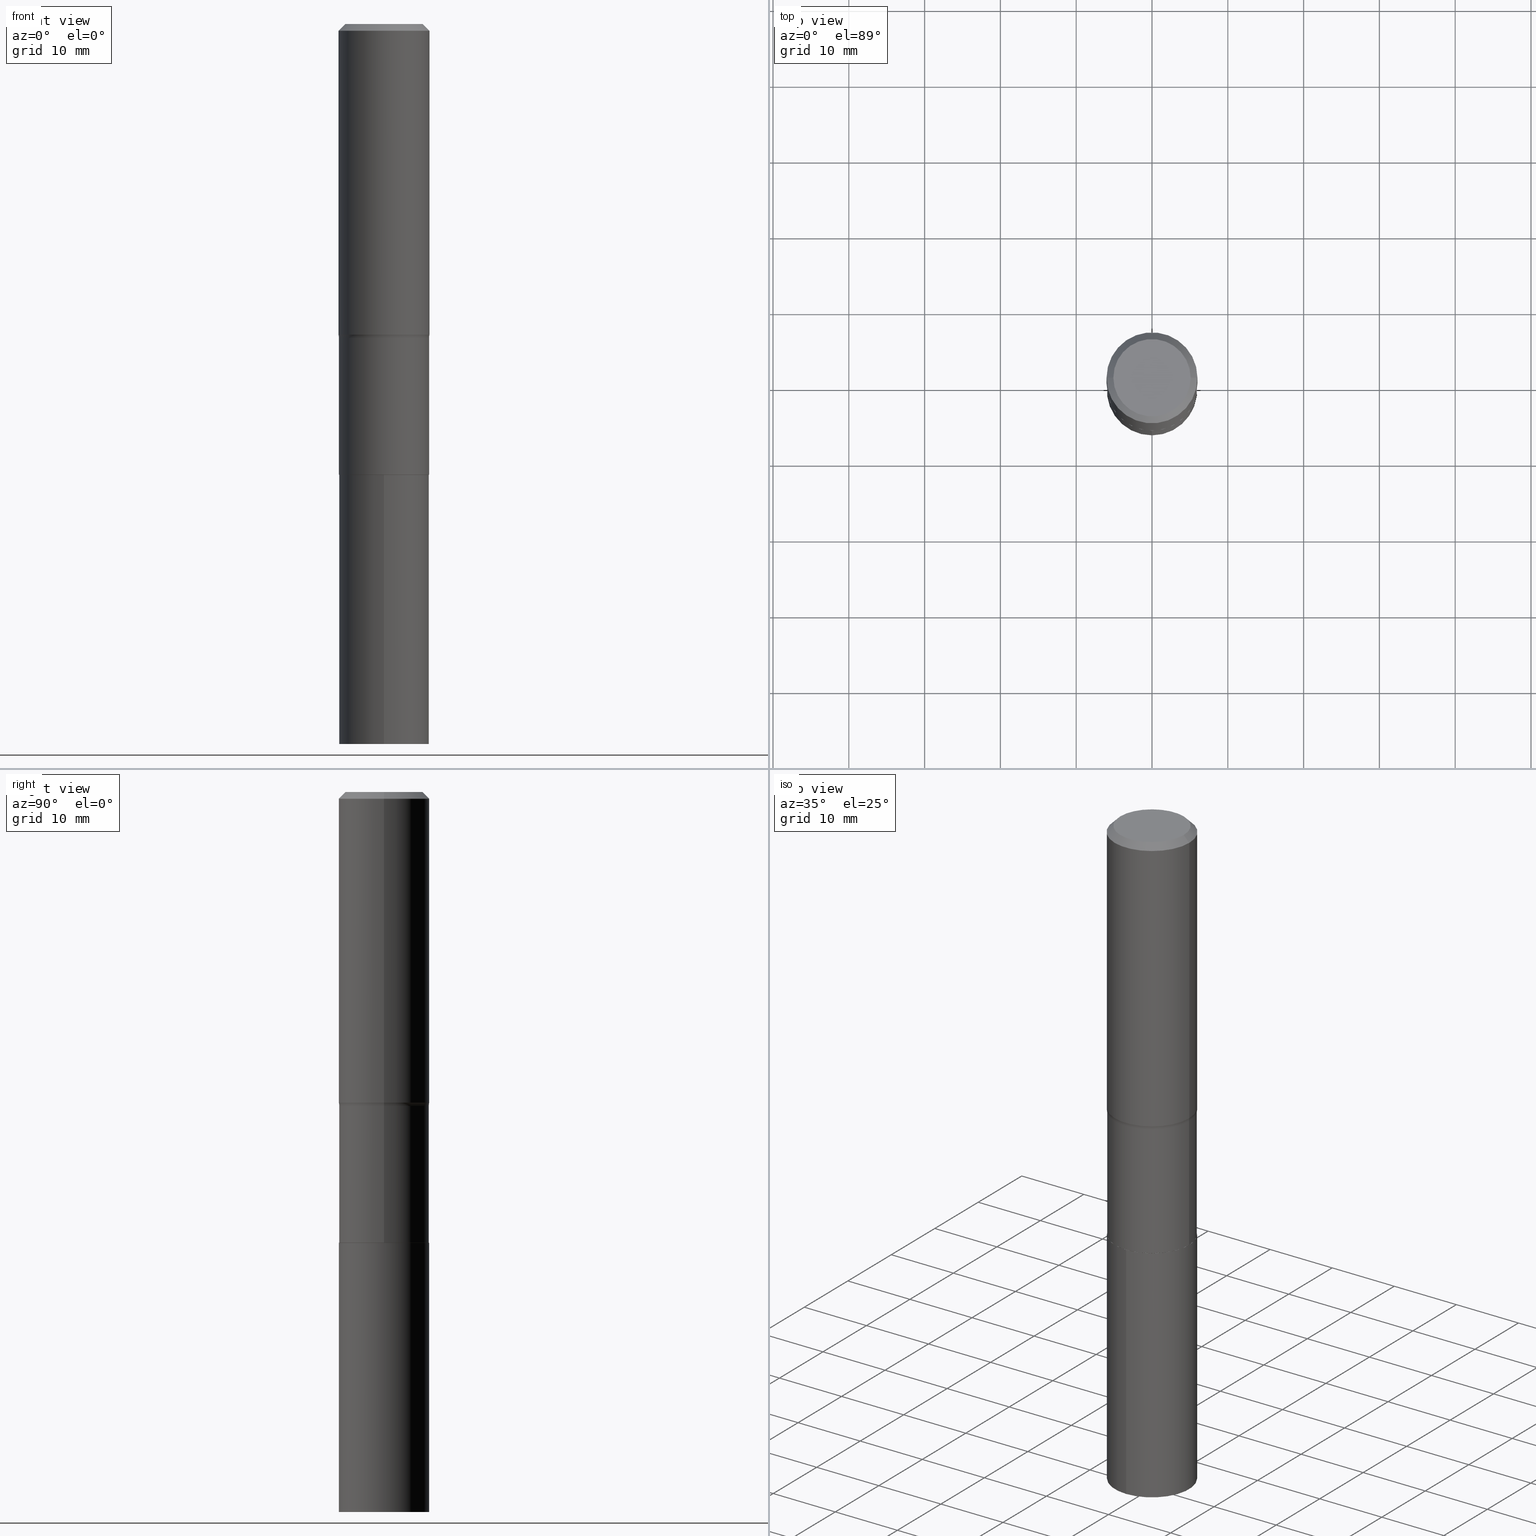
[diagram: canonical four-view strip — front | top / right | iso, engineering-drawing reading convention]
A machine part, canonical four-view strip (front | top / right | iso — engineering-drawing reading convention). The complete STEP part file that produces these views, byte-faithful:
ISO-10303-21;
HEADER;
FILE_DESCRIPTION (( 'STEP AP203' ),
    '1' );
FILE_NAME ('67796.STEP',
    '2024-04-19T16:32:29',
    ( '' ),
    ( '' ),
    'SwSTEP 2.0',
    'SolidWorks 2023',
    '' );
FILE_SCHEMA (( 'CONFIG_CONTROL_DESIGN' ));
ENDSEC;

DATA;
#1 = DIRECTION ( 'NONE',  ( 1.000000000000000000, -6.982962677686263555E-15, 0.000000000000000000 ) ) ;
#2 = EDGE_CURVE ( 'NONE', #415, #142, #339, .T. ) ;
#3 = AXIS2_PLACEMENT_3D ( 'NONE', #371, #294, #79 ) ;
#4 = TOROIDAL_SURFACE ( 'NONE', #446, 0.3142499999999999183, 0.08000000000000000167 ) ;
#5 = DIRECTION ( 'NONE',  ( 1.000000000000000000, -6.982962677686266711E-15, 4.876176775795935793E-29 ) ) ;
#6 = APPLICATION_PROTOCOL_DEFINITION ( 'international standard', 'config_control_design', 1994, #11 ) ;
#7 = ORIENTED_EDGE ( 'NONE', *, *, #2, .T. ) ;
#8 = CIRCLE ( 'NONE', #310, 0.2337500000000000133 ) ;
#9 = AXIS2_PLACEMENT_3D ( 'NONE', #321, #107, #1 ) ;
#10 = VERTEX_POINT ( 'NONE', #191 ) ;
#11 = APPLICATION_CONTEXT ( 'configuration controlled 3d designs of mechanical parts and assemblies' ) ;
#12 = CARTESIAN_POINT ( 'NONE',  ( 0.000000000000000000, 0.000000000000000000, 0.000000000000000000 ) ) ;
#13 = LINE ( 'NONE', #305, #391 ) ;
#14 = EDGE_CURVE ( 'NONE', #315, #244, #8, .T. ) ;
#15 = APPROVAL_DATE_TIME ( #293, #438 ) ;
#16 = ORIENTED_EDGE ( 'NONE', *, *, #272, .F. ) ;
#17 = CARTESIAN_POINT ( 'NONE',  ( -0.2337500000000000133, -6.513362465660339042E-15, -2.341200000000000170 ) ) ;
#18 = AXIS2_PLACEMENT_3D ( 'NONE', #238, #61, #379 ) ;
#19 = ADVANCED_FACE ( 'NONE', ( #297 ), #369, .T. ) ;
#20 = CARTESIAN_POINT ( 'NONE',  ( 0.2362000000000001043, -1.649375784469496920E-15, 1.151752954443000508E-29 ) ) ;
#21 = CC_DESIGN_PERSON_AND_ORGANIZATION_ASSIGNMENT ( #262, #407, ( #189 ) ) ;
#22 = DIRECTION ( 'NONE',  ( -2.445468806185136597E-29, 3.491481338843145583E-15, 1.000000000000000000 ) ) ;
#23 = CARTESIAN_POINT ( 'NONE',  ( 0.2361999999999999933, -1.773078968304709711E-15, -0.03543000000000023908 ) ) ;
#24 = AXIS2_PLACEMENT_3D ( 'NONE', #12, #337, #372 ) ;
#25 = CARTESIAN_POINT ( 'NONE',  ( 5.725331569040642181E-29, -8.174256110499573321E-15, -2.341200000000000170 ) ) ;
#26 = EDGE_CURVE ( 'NONE', #426, #35, #66, .T. ) ;
#27 = EDGE_LOOP ( 'NONE', ( #133, #187 ) ) ;
#28 = DIRECTION ( 'NONE',  ( 0.7071067811866199593, -2.468850131083015945E-15, 0.7071067811864750752 ) ) ;
#29 = ADVANCED_BREP_SHAPE_REPRESENTATION ( '67796', ( #277, #123, #24 ), #322 ) ;
#30 = ORIENTED_EDGE ( 'NONE', *, *, #139, .T. ) ;
#31 = DIRECTION ( 'NONE',  ( -2.445468806185136597E-29, 3.491481338843145583E-15, 1.000000000000000000 ) ) ;
#32 = ORIENTED_EDGE ( 'NONE', *, *, #44, .T. ) ;
#33 = CIRCLE ( 'NONE', #9, 0.2342499999999999027 ) ;
#34 = DIRECTION ( 'NONE',  ( -2.445468806185136597E-29, 3.491481338843145583E-15, 1.000000000000000000 ) ) ;
#35 = VERTEX_POINT ( 'NONE', #115 ) ;
#36 = CARTESIAN_POINT ( 'NONE',  ( -0.2362000000000001043, 1.678301941865357380E-15, -1.161852468318209317E-29 ) ) ;
#37 = CARTESIAN_POINT ( 'NONE',  ( 1.664446358518108739E-15, 0.2342499999999869686, -3.740200000000001967 ) ) ;
#38 = CLOSED_SHELL ( 'NONE', ( #358, #198, #145, #245 ) ) ;
#39 = CARTESIAN_POINT ( 'NONE',  ( 3.988315076007339561E-29, -5.694256915519285955E-15, -1.630900000000000016 ) ) ;
#40 = FACE_OUTER_BOUND ( 'NONE', #169, .T. ) ;
#41 = ORIENTED_EDGE ( 'NONE', *, *, #272, .T. ) ;
#42 = EDGE_LOOP ( 'NONE', ( #108, #32, #405, #428 ) ) ;
#43 = CIRCLE ( 'NONE', #311, 0.2342500000000000138 ) ;
#44 = EDGE_CURVE ( 'NONE', #315, #439, #335, .T. ) ;
#45 = CARTESIAN_POINT ( 'NONE',  ( 5.724108834637550500E-29, -8.172510369830151029E-15, -2.340700000000000447 ) ) ;
#46 = COORDINATED_UNIVERSAL_TIME_OFFSET ( 5, 0, .BEHIND. ) ;
#47 = LINE ( 'NONE', #197, #118 ) ;
#48 = COORDINATED_UNIVERSAL_TIME_OFFSET ( 5, 0, .BEHIND. ) ;
#49 = DIRECTION ( 'NONE',  ( -0.7071067811865451302, 2.468850131082231817E-15, -0.7071067811865499042 ) ) ;
#50 = ORIENTED_EDGE ( 'NONE', *, *, #333, .F. ) ;
#51 = AXIS2_PLACEMENT_3D ( 'NONE', #336, #443, #83 ) ;
#52 = DIRECTION ( 'NONE',  ( -2.445468806185136597E-29, 3.491481338843145583E-15, 1.000000000000000000 ) ) ;
#53 = APPROVAL_PERSON_ORGANIZATION ( #448, #438, #225 ) ;
#54 = CC_DESIGN_PERSON_AND_ORGANIZATION_ASSIGNMENT ( #365, #121, ( #298 ) ) ;
#55 = CARTESIAN_POINT ( 'NONE',  ( 0.2337500000000000133, -9.806523636408736745E-15, -2.341200000000000170 ) ) ;
#56 = CARTESIAN_POINT ( 'NONE',  ( 0.2337500000000000133, -9.806523636408736745E-15, -2.341200000000000170 ) ) ;
#57 = CARTESIAN_POINT ( 'NONE',  ( 3.988315076007339561E-29, -5.694256915519285955E-15, -1.630900000000000016 ) ) ;
#58 = EDGE_CURVE ( 'NONE', #415, #221, #334, .T. ) ;
#59 = AXIS2_PLACEMENT_3D ( 'NONE', #354, #146, #105 ) ;
#60 = ORIENTED_EDGE ( 'NONE', *, *, #87, .T. ) ;
#61 = DIRECTION ( 'NONE',  ( -2.445468806185136597E-29, 3.491481338843145583E-15, 1.000000000000000000 ) ) ;
#62 = ORIENTED_EDGE ( 'NONE', *, *, #344, .F. ) ;
#63 = CARTESIAN_POINT ( 'NONE',  ( -0.2342499999999999027, -5.268937284156683709E-15, -1.630900000000000016 ) ) ;
#64 = ORIENTED_EDGE ( 'NONE', *, *, #2, .F. ) ;
#65 = DIRECTION ( 'NONE',  ( -2.445468806185136597E-29, 3.491481338843145583E-15, 1.000000000000000000 ) ) ;
#66 = CIRCLE ( 'NONE', #404, 0.2007700000000000040 ) ;
#67 = ORIENTED_EDGE ( 'NONE', *, *, #451, .F. ) ;
#68 = CC_DESIGN_PERSON_AND_ORGANIZATION_ASSIGNMENT ( #300, #444, ( #189 ) ) ;
#69 = CARTESIAN_POINT ( 'NONE',  ( 0.2362000000000002153, -7.282337808442698959E-15, -1.613344445323487086 ) ) ;
#70 = UNCERTAINTY_MEASURE_WITH_UNIT (LENGTH_MEASURE( 1.000000000000000082E-05 ), #442, 'distance_accuracy_value', 'NONE');
#71 = CARTESIAN_POINT ( 'NONE',  ( -0.2342500000000000415, -5.268937284156683709E-15, -2.340700000000000447 ) ) ;
#72 = FACE_OUTER_BOUND ( 'NONE', #85, .T. ) ;
#73 = CLOSED_SHELL ( 'NONE', ( #222, #167, #307, #363, #400, #19, #185, #316, #380, #295, #214, #113 ) ) ;
#74 = DIRECTION ( 'NONE',  ( 2.438088387897960049E-29, -3.491481338843145188E-15, -1.000000000000000000 ) ) ;
#75 = ORIENTED_EDGE ( 'NONE', *, *, #77, .T. ) ;
#76 = CARTESIAN_POINT ( 'NONE',  ( 5.725331569040642181E-29, -8.174256110499573321E-15, -2.341200000000000170 ) ) ;
#77 = EDGE_CURVE ( 'NONE', #142, #210, #143, .T. ) ;
#78 = DIRECTION ( 'NONE',  ( -2.445460202630116151E-29, 3.491493659623618678E-15, 1.000000000000000000 ) ) ;
#79 = DIRECTION ( 'NONE',  ( -1.000000000000000000, 7.105427357601001859E-15, 0.000000000000000000 ) ) ;
#80 = EDGE_CURVE ( 'NONE', #35, #230, #195, .T. ) ;
#81 = AXIS2_PLACEMENT_3D ( 'NONE', #141, #65, #5 ) ;
#82 =( NAMED_UNIT ( * ) SI_UNIT ( $, .STERADIAN. ) SOLID_ANGLE_UNIT ( ) );
#83 = DIRECTION ( 'NONE',  ( 1.000000000000000000, -6.982962677686266711E-15, 0.000000000000000000 ) ) ;
#84 = SECURITY_CLASSIFICATION_LEVEL ( 'unclassified' ) ;
#85 = EDGE_LOOP ( 'NONE', ( #125, #278, #16, #460 ) ) ;
#86 = ORIENTED_EDGE ( 'NONE', *, *, #87, .F. ) ;
#87 = EDGE_CURVE ( 'NONE', #283, #10, #47, .T. ) ;
#88 = DIRECTION ( 'NONE',  ( 1.000000000000000000, -6.982962677686265922E-15, 4.876176775795935793E-29 ) ) ;
#89 = PLANE ( 'NONE',  #237 ) ;
#90 = EDGE_CURVE ( 'NONE', #281, #439, #203, .T. ) ;
#91 = DIRECTION ( 'NONE',  ( 2.445468806185136597E-29, -3.491481338843145583E-15, -1.000000000000000000 ) ) ;
#92 = APPROVAL ( #154, 'UNSPECIFIED' ) ;
#93 = CARTESIAN_POINT ( 'NONE',  ( 9.146530392520179106E-29, -1.305885574031301935E-14, -3.740200000000001079 ) ) ;
#94 = CIRCLE ( 'NONE', #423, 0.2342500000000000138 ) ;
#95 = ORGANIZATION ( 'UNSPECIFIED', 'UNSPECIFIED', '' ) ;
#96 = ORIENTED_EDGE ( 'NONE', *, *, #183, .F. ) ;
#97 = CARTESIAN_POINT ( 'NONE',  ( 3.988315076007339561E-29, -5.694256915519285955E-15, -1.630900000000000016 ) ) ;
#98 = ORIENTED_EDGE ( 'NONE', *, *, #77, .F. ) ;
#99 = DIRECTION ( 'NONE',  ( 1.000000000000000000, -6.982962677686266711E-15, 4.876176775795935793E-29 ) ) ;
#100 = CC_DESIGN_PERSON_AND_ORGANIZATION_ASSIGNMENT ( #228, #304, ( #299 ) ) ;
#101 = ORIENTED_EDGE ( 'NONE', *, *, #163, .F. ) ;
#102 = CYLINDRICAL_SURFACE ( 'NONE', #463, 0.2342500000000000138 ) ;
#103 = AXIS2_PLACEMENT_3D ( 'NONE', #385, #124, #273 ) ;
#104 = APPLICATION_CONTEXT ( 'configuration controlled 3d designs of mechanical parts and assemblies' ) ;
#105 = DIRECTION ( 'NONE',  ( 1.000000000000000000, -6.982962677686266711E-15, 0.000000000000000000 ) ) ;
#106 = CARTESIAN_POINT ( 'NONE',  ( -1.001697619218023151E-46, 1.430158722866391908E-32, 4.096137381448114529E-18 ) ) ;
#107 = DIRECTION ( 'NONE',  ( -2.445468806185136597E-29, 3.491481338843145583E-15, 1.000000000000000000 ) ) ;
#108 = ORIENTED_EDGE ( 'NONE', *, *, #288, .T. ) ;
#109 = VECTOR ( 'NONE', #356, 39.37007874015748143 ) ;
#110 = SECURITY_CLASSIFICATION ( '', '', #84 ) ;
#111 = CALENDAR_DATE ( 2024, 19, 4 ) ;
#112 = CARTESIAN_POINT ( 'NONE',  ( 9.146530392520179106E-29, -1.305885574031301935E-14, -3.740200000000001079 ) ) ;
#113 = ADVANCED_FACE ( 'NONE', ( #226 ), #456, .T. ) ;
#114 = DIRECTION ( 'NONE',  ( -6.982962677686265133E-15, -1.000000000000000000, 3.498631368620187579E-15 ) ) ;
#115 = CARTESIAN_POINT ( 'NONE',  ( -0.2007700000000000040, 1.463821008716676943E-15, 4.096137381438094301E-18 ) ) ;
#116 = CC_DESIGN_DATE_AND_TIME_ASSIGNMENT ( #186, #264, ( #298 ) ) ;
#117 = DIRECTION ( 'NONE',  ( -0.7071067811866199593, 7.493145998870616062E-15, 0.7071067811864750752 ) ) ;
#118 = VECTOR ( 'NONE', #193, 39.37007874015748143 ) ;
#119 = AXIS2_PLACEMENT_3D ( 'NONE', #76, #270, #199 ) ;
#120 = DIRECTION ( 'NONE',  ( 1.000000000000000000, -6.982962677686262766E-15, 0.000000000000000000 ) ) ;
#121 = PERSON_AND_ORGANIZATION_ROLE ( 'creator' ) ;
#122 = FACE_OUTER_BOUND ( 'NONE', #160, .T. ) ;
#123 = MANIFOLD_SOLID_BREP ( 'Body-Move/Copy2[2]', #73 ) ;
#124 = DIRECTION ( 'NONE',  ( -6.982962677686266711E-15, -1.000000000000000000, 3.491481338843145583E-15 ) ) ;
#125 = ORIENTED_EDGE ( 'NONE', *, *, #90, .T. ) ;
#126 = CALENDAR_DATE ( 2024, 19, 4 ) ;
#127 = CIRCLE ( 'NONE', #247, 0.2342500000000000138 ) ;
#128 = CARTESIAN_POINT ( 'NONE',  ( 1.664446358518126094E-15, 0.2342499999999918259, -2.341200000000001058 ) ) ;
#129 = LOCAL_TIME ( 12, 32, 29.00000000000000000, #46 ) ;
#130 = EDGE_CURVE ( 'NONE', #439, #210, #13, .T. ) ;
#131 = CARTESIAN_POINT ( 'NONE',  ( 0.2342500000000000138, -9.808269377078159037E-15, -2.340700000000000447 ) ) ;
#132 = PRODUCT_RELATED_PRODUCT_CATEGORY ( 'detail', '', ( #299 ) ) ;
#133 = ORIENTED_EDGE ( 'NONE', *, *, #344, .T. ) ;
#134 = DIRECTION ( 'NONE',  ( 1.000000000000000000, -6.982962677686263555E-15, 0.000000000000000000 ) ) ;
#135 = AXIS2_PLACEMENT_3D ( 'NONE', #39, #467, #433 ) ;
#136 = ORIENTED_EDGE ( 'NONE', *, *, #280, .T. ) ;
#137 = DESIGN_CONTEXT ( 'detailed design', #104, 'design' ) ;
#138 = CARTESIAN_POINT ( 'NONE',  ( 0.000000000000000000, 0.000000000000000000, 0.000000000000000000 ) ) ;
#139 = EDGE_CURVE ( 'NONE', #387, #283, #127, .T. ) ;
#140 = ORIENTED_EDGE ( 'NONE', *, *, #288, .F. ) ;
#141 = CARTESIAN_POINT ( 'NONE',  ( 0.000000000000000000, 0.000000000000000000, 0.000000000000000000 ) ) ;
#142 = VERTEX_POINT ( 'NONE', #449 ) ;
#143 = CIRCLE ( 'NONE', #3, 0.07999999999999996003 ) ;
#144 = AXIS2_PLACEMENT_3D ( 'NONE', #138, #211, #465 ) ;
#145 = ADVANCED_FACE ( 'NONE', ( #122 ), #265, .T. ) ;
#146 = DIRECTION ( 'NONE',  ( -2.445468806185136597E-29, 3.491481338843145583E-15, 1.000000000000000000 ) ) ;
#147 = MECHANICAL_CONTEXT ( 'NONE', #11, 'mechanical' ) ;
#148 = ORIENTED_EDGE ( 'NONE', *, *, #386, .F. ) ;
#149 = VECTOR ( 'NONE', #28, 39.37007874015748143 ) ;
#150 = COORDINATED_UNIVERSAL_TIME_OFFSET ( 5, 0, .BEHIND. ) ;
#151 = DIRECTION ( 'NONE',  ( -2.445468806185136597E-29, 3.491481338843145583E-15, 1.000000000000000000 ) ) ;
#152 = COORDINATED_UNIVERSAL_TIME_OFFSET ( 5, 0, .BEHIND. ) ;
#153 = DIRECTION ( 'NONE',  ( 1.000000000000000000, -6.982962677686262766E-15, 0.000000000000000000 ) ) ;
#154 = APPROVAL_STATUS ( 'not_yet_approved' ) ;
#155 = PRODUCT_DEFINITION_SHAPE ( 'NONE', 'NONE',  #298 ) ;
#156 = CARTESIAN_POINT ( 'NONE',  ( 0.000000000000000000, 0.000000000000000000, 0.000000000000000000 ) ) ;
#157 = AXIS2_PLACEMENT_3D ( 'NONE', #459, #91, #271 ) ;
#158 = DATE_TIME_ROLE ( 'classification_date' ) ;
#159 = CARTESIAN_POINT ( 'NONE',  ( -1.001697619218023151E-46, 1.430158722866391908E-32, 4.096137381448114529E-18 ) ) ;
#160 = EDGE_LOOP ( 'NONE', ( #364, #30, #60, #67 ) ) ;
#161 = ORIENTED_EDGE ( 'NONE', *, *, #44, .F. ) ;
#162 = CARTESIAN_POINT ( 'NONE',  ( 5.725331569040642181E-29, -8.174256110499573321E-15, -2.341200000000000170 ) ) ;
#163 = EDGE_CURVE ( 'NONE', #10, #205, #390, .T. ) ;
#164 = CIRCLE ( 'NONE', #212, 0.2337500000000000133 ) ;
#165 = CARTESIAN_POINT ( 'NONE',  ( 5.725331569040642181E-29, -8.174256110499573321E-15, -2.341200000000000170 ) ) ;
#166 = AXIS2_PLACEMENT_3D ( 'NONE', #388, #279, #99 ) ;
#167 = ADVANCED_FACE ( 'NONE', ( #418 ), #181, .T. ) ;
#168 = DIRECTION ( 'NONE',  ( -2.445468806185136597E-29, 3.491481338843145583E-15, 1.000000000000000000 ) ) ;
#169 = EDGE_LOOP ( 'NONE', ( #422, #136, #101, #86 ) ) ;
#170 = APPROVAL_ROLE ( '' ) ;
#171 = LINE ( 'NONE', #56, #149 ) ;
#172 = EDGE_LOOP ( 'NONE', ( #7, #318, #274, #362 ) ) ;
#173 = EDGE_CURVE ( 'NONE', #142, #415, #219, .T. ) ;
#174 = FACE_OUTER_BOUND ( 'NONE', #42, .T. ) ;
#175 = CC_DESIGN_SECURITY_CLASSIFICATION ( #110, ( #189 ) ) ;
#176 = ORIENTED_EDGE ( 'NONE', *, *, #451, .T. ) ;
#177 = CARTESIAN_POINT ( 'NONE',  ( -0.2337500000000000133, -6.510713238486227841E-15, -2.341200000000000170 ) ) ;
#178 = ORIENTED_EDGE ( 'NONE', *, *, #207, .F. ) ;
#179 = LINE ( 'NONE', #427, #109 ) ;
#180 = CARTESIAN_POINT ( 'NONE',  ( -5.008488096090115757E-47, 7.150793614331959538E-33, 2.048068690724057264E-18 ) ) ;
#181 = CONICAL_SURFACE ( 'NONE', #157, 0.2361999999999999933, 0.7853981633974449483 ) ;
#182 = DIRECTION ( 'NONE',  ( 2.445468806185136597E-29, -3.491481338843145583E-15, -1.000000000000000000 ) ) ;
#183 = EDGE_CURVE ( 'NONE', #283, #387, #43, .T. ) ;
#184 = EDGE_LOOP ( 'NONE', ( #384, #75, #399, #178 ) ) ;
#185 = ADVANCED_FACE ( 'NONE', ( #343 ), #4, .F. ) ;
#186 = DATE_AND_TIME ( #410, #129 ) ;
#187 = ORIENTED_EDGE ( 'NONE', *, *, #26, .T. ) ;
#188 = AXIS2_PLACEMENT_3D ( 'NONE', #206, #450, #204 ) ;
#189 = PRODUCT_DEFINITION_FORMATION_WITH_SPECIFIED_SOURCE ( 'ANY', '', #299, .NOT_KNOWN. ) ;
#190 = LENGTH_MEASURE_WITH_UNIT ( LENGTH_MEASURE( 0.02539999999999999897 ), #192 );
#191 = CARTESIAN_POINT ( 'NONE',  ( -1.635759007247950422E-15, -0.2342500000000081739, -2.341199999999999282 ) ) ;
#192 =( LENGTH_UNIT ( ) NAMED_UNIT ( * ) SI_UNIT ( $, .METRE. ) );
#193 = DIRECTION ( 'NONE',  ( -2.445460202630116431E-29, 3.491493659623618678E-15, 1.000000000000000000 ) ) ;
#194 = CALENDAR_DATE ( 2024, 19, 4 ) ;
#195 = LINE ( 'NONE', #402, #259 ) ;
#196 = ORIENTED_EDGE ( 'NONE', *, *, #408, .T. ) ;
#197 = CARTESIAN_POINT ( 'NONE',  ( -1.635759007247950422E-15, -0.2342500000000081739, -2.341199999999999282 ) ) ;
#198 = ADVANCED_FACE ( 'NONE', ( #309 ), #349, .F. ) ;
#199 = DIRECTION ( 'NONE',  ( -6.982962677686265133E-15, -1.000000000000000000, 3.498631368620187579E-15 ) ) ;
#200 = DATE_AND_TIME ( #126, #303 ) ;
#201 = LINE ( 'NONE', #313, #367 ) ;
#202 = VECTOR ( 'NONE', #258, 39.37007874015748143 ) ;
#203 = CIRCLE ( 'NONE', #328, 0.2342500000000000138 ) ;
#204 = DIRECTION ( 'NONE',  ( 1.000000000000000000, -6.982962677686266711E-15, 0.000000000000000000 ) ) ;
#205 = VERTEX_POINT ( 'NONE', #128 ) ;
#206 = CARTESIAN_POINT ( 'NONE',  ( 3.945383514670648999E-29, -5.632962023973200856E-15, -1.613344445323487086 ) ) ;
#207 = EDGE_CURVE ( 'NONE', #415, #382, #260, .T. ) ;
#208 = EDGE_LOOP ( 'NONE', ( #161, #236, #397, #50 ) ) ;
#209 = DIRECTION ( 'NONE',  ( -2.445460202630116151E-29, 3.491493659623618678E-15, 1.000000000000000000 ) ) ;
#210 = VERTEX_POINT ( 'NONE', #63 ) ;
#211 = DIRECTION ( 'NONE',  ( -2.445468806185136597E-29, 3.491481338843145583E-15, 1.000000000000000000 ) ) ;
#212 = AXIS2_PLACEMENT_3D ( 'NONE', #25, #168, #314 ) ;
#213 = EDGE_LOOP ( 'NONE', ( #98, #64, #323, #41 ) ) ;
#214 = ADVANCED_FACE ( 'NONE', ( #351 ), #89, .F. ) ;
#215 = PLANE ( 'NONE',  #227 ) ;
#216 = CARTESIAN_POINT ( 'NONE',  ( 0.2361999999999999933, -1.744152810908849251E-15, -0.03543000000000023908 ) ) ;
#217 = CC_DESIGN_PERSON_AND_ORGANIZATION_ASSIGNMENT ( #436, #370, ( #110 ) ) ;
#218 = FACE_OUTER_BOUND ( 'NONE', #184, .T. ) ;
#219 = CIRCLE ( 'NONE', #188, 0.2362000000000002153 ) ;
#220 = FACE_OUTER_BOUND ( 'NONE', #172, .T. ) ;
#221 = VERTEX_POINT ( 'NONE', #23 ) ;
#222 = ADVANCED_FACE ( 'NONE', ( #174 ), #302, .T. ) ;
#223 = APPROVAL_DATE_TIME ( #398, #92 ) ;
#224 = ORIENTED_EDGE ( 'NONE', *, *, #163, .T. ) ;
#225 = APPROVAL_ROLE ( '' ) ;
#226 = FACE_OUTER_BOUND ( 'NONE', #208, .T. ) ;
#227 = AXIS2_PLACEMENT_3D ( 'NONE', #180, #74, #395 ) ;
#228 = PERSON_AND_ORGANIZATION ( #393, #95 ) ;
#229 = DIRECTION ( 'NONE',  ( -2.445468806185136597E-29, 3.491481338843145583E-15, 1.000000000000000000 ) ) ;
#230 = VERTEX_POINT ( 'NONE', #377 ) ;
#231 = ORIENTED_EDGE ( 'NONE', *, *, #58, .T. ) ;
#232 = AXIS2_PLACEMENT_3D ( 'NONE', #431, #182, #289 ) ;
#233 = CARTESIAN_POINT ( 'NONE',  ( 5.725331569040642181E-29, -8.174256110499573321E-15, -2.341200000000000170 ) ) ;
#234 = DIRECTION ( 'NONE',  ( 6.982962677686265922E-15, 1.000000000000000000, -3.491493659623618678E-15 ) ) ;
#235 = DIRECTION ( 'NONE',  ( 1.000000000000000000, -6.982962677686267499E-15, 4.883557194083113462E-29 ) ) ;
#236 = ORIENTED_EDGE ( 'NONE', *, *, #14, .T. ) ;
#237 = AXIS2_PLACEMENT_3D ( 'NONE', #165, #419, #88 ) ;
#238 = CARTESIAN_POINT ( 'NONE',  ( 8.664295980313996991E-31, -1.237031838352134818E-16, -0.03543000000000023908 ) ) ;
#239 = CIRCLE ( 'NONE', #312, 0.2342500000000000138 ) ;
#240 = EDGE_LOOP ( 'NONE', ( #435, #348, #231, #389 ) ) ;
#241 = DIRECTION ( 'NONE',  ( -6.982962677686265922E-15, -1.000000000000000000, 3.491493659623618678E-15 ) ) ;
#242 = ORIENTED_EDGE ( 'NONE', *, *, #130, .F. ) ;
#243 = CYLINDRICAL_SURFACE ( 'NONE', #166, 0.2342499999999999583 ) ;
#244 = VERTEX_POINT ( 'NONE', #55 ) ;
#245 = ADVANCED_FACE ( 'NONE', ( #461 ), #342, .F. ) ;
#246 = LINE ( 'NONE', #216, #269 ) ;
#247 = AXIS2_PLACEMENT_3D ( 'NONE', #112, #338, #366 ) ;
#248 = LOCAL_TIME ( 12, 32, 29.00000000000000000, #150 ) ;
#249 = DIRECTION ( 'NONE',  ( -2.445468806185136597E-29, 3.491481338843145583E-15, 1.000000000000000000 ) ) ;
#250 = FACE_OUTER_BOUND ( 'NONE', #263, .T. ) ;
#251 = FACE_OUTER_BOUND ( 'NONE', #240, .T. ) ;
#252 = EDGE_CURVE ( 'NONE', #230, #221, #319, .T. ) ;
#253 = EDGE_LOOP ( 'NONE', ( #140, #376 ) ) ;
#254 = AXIS2_PLACEMENT_3D ( 'NONE', #162, #454, #234 ) ;
#255 =( NAMED_UNIT ( * ) PLANE_ANGLE_UNIT ( ) SI_UNIT ( $, .RADIAN. ) );
#256 = ORIENTED_EDGE ( 'NONE', *, *, #139, .F. ) ;
#257 = DIRECTION ( 'NONE',  ( 1.000000000000000000, -6.982962677686266711E-15, 4.876176775795935793E-29 ) ) ;
#258 = DIRECTION ( 'NONE',  ( -2.445468806185136877E-29, 3.491481338843145188E-15, 1.000000000000000000 ) ) ;
#259 = VECTOR ( 'NONE', #49, 39.37007874015748143 ) ;
#260 = CIRCLE ( 'NONE', #103, 0.07999999999999996003 ) ;
#261 = LOCAL_TIME ( 12, 32, 29.00000000000000000, #152 ) ;
#262 = PERSON_AND_ORGANIZATION ( #393, #95 ) ;
#263 = EDGE_LOOP ( 'NONE', ( #462, #62, #466, #291 ) ) ;
#264 = DATE_TIME_ROLE ( 'creation_date' ) ;
#265 = CYLINDRICAL_SURFACE ( 'NONE', #119, 0.2342500000000000138 ) ;
#266 = SHAPE_DEFINITION_REPRESENTATION ( #155, #29 ) ;
#267 = DIRECTION ( 'NONE',  ( -2.445460202630115871E-29, 3.491493659623618678E-15, 1.000000000000000000 ) ) ;
#268 = EDGE_CURVE ( 'NONE', #244, #281, #171, .T. ) ;
#269 = VECTOR ( 'NONE', #392, 39.37007874015748143 ) ;
#270 = DIRECTION ( 'NONE',  ( -2.445460202630116151E-29, 3.491493659623618678E-15, 1.000000000000000000 ) ) ;
#271 = DIRECTION ( 'NONE',  ( -1.000000000000000000, 6.982962677686266711E-15, 0.000000000000000000 ) ) ;
#272 = EDGE_CURVE ( 'NONE', #382, #210, #346, .T. ) ;
#273 = DIRECTION ( 'NONE',  ( 1.000000000000000000, -6.982962677686262766E-15, 0.000000000000000000 ) ) ;
#274 = ORIENTED_EDGE ( 'NONE', *, *, #320, .F. ) ;
#275 = AXIS2_PLACEMENT_3D ( 'NONE', #106, #34, #429 ) ;
#276 = DIRECTION ( 'NONE',  ( -2.445460202630116151E-29, 3.491493659623618678E-15, 1.000000000000000000 ) ) ;
#277 = MANIFOLD_SOLID_BREP ( 'Body-Move/Copy2[1]', #38 ) ;
#278 = ORIENTED_EDGE ( 'NONE', *, *, #130, .T. ) ;
#279 = DIRECTION ( 'NONE',  ( -2.445468806185136597E-29, 3.491481338843145583E-15, 1.000000000000000000 ) ) ;
#280 = EDGE_CURVE ( 'NONE', #387, #205, #201, .T. ) ;
#281 = VERTEX_POINT ( 'NONE', #131 ) ;
#282 = CARTESIAN_POINT ( 'NONE',  ( 5.724108834637550500E-29, -8.172510369830151029E-15, -2.340700000000000447 ) ) ;
#283 = VERTEX_POINT ( 'NONE', #347 ) ;
#284 = AXIS2_PLACEMENT_3D ( 'NONE', #156, #52, #257 ) ;
#285 = DIRECTION ( 'NONE',  ( -2.445468806185136877E-29, 3.491481338843145188E-15, 1.000000000000000000 ) ) ;
#286 = AXIS2_PLACEMENT_3D ( 'NONE', #301, #445, #120 ) ;
#287 = DIRECTION ( 'NONE',  ( 1.000000000000000000, -6.982962677686265133E-15, 0.000000000000000000 ) ) ;
#288 = EDGE_CURVE ( 'NONE', #244, #315, #164, .T. ) ;
#289 = DIRECTION ( 'NONE',  ( -1.000000000000000000, 6.982962677686266711E-15, 0.000000000000000000 ) ) ;
#290 = CALENDAR_DATE ( 2024, 19, 4 ) ;
#291 = ORIENTED_EDGE ( 'NONE', *, *, #252, .T. ) ;
#292 = AXIS2_PLACEMENT_3D ( 'NONE', #381, #267, #241 ) ;
#293 = DATE_AND_TIME ( #290, #248 ) ;
#294 = DIRECTION ( 'NONE',  ( 7.105427357601001859E-15, 1.000000000000000000, -3.491481338843145583E-15 ) ) ;
#295 = ADVANCED_FACE ( 'NONE', ( #330 ), #215, .F. ) ;
#296 = PERSON_AND_ORGANIZATION ( #393, #95 ) ;
#297 = FACE_OUTER_BOUND ( 'NONE', #355, .T. ) ;
#298 = PRODUCT_DEFINITION ( 'UNKNOWN', '', #189, #137 ) ;
#299 = PRODUCT ( '67796', '67796', '', ( #147 ) ) ;
#300 = PERSON_AND_ORGANIZATION ( #393, #95 ) ;
#301 = CARTESIAN_POINT ( 'NONE',  ( 5.725331569040642181E-29, -8.174256110499573321E-15, -2.341200000000000170 ) ) ;
#302 = CONICAL_SURFACE ( 'NONE', #396, 0.2337500000000000133, 0.7853981633975507526 ) ;
#303 = LOCAL_TIME ( 12, 32, 29.00000000000000000, #424 ) ;
#304 = PERSON_AND_ORGANIZATION_ROLE ( 'design_owner' ) ;
#305 = CARTESIAN_POINT ( 'NONE',  ( -0.2342499999999999583, 1.664446358518034389E-15, -1.152260544892211521E-29 ) ) ;
#306 = APPROVAL_DATE_TIME ( #200, #353 ) ;
#307 = ADVANCED_FACE ( 'NONE', ( #220 ), #361, .T. ) ;
#308 = DIRECTION ( 'NONE',  ( 1.000000000000000000, -6.982962677686265133E-15, 0.000000000000000000 ) ) ;
#309 = FACE_OUTER_BOUND ( 'NONE', #331, .T. ) ;
#310 = AXIS2_PLACEMENT_3D ( 'NONE', #373, #229, #153 ) ;
#311 = AXIS2_PLACEMENT_3D ( 'NONE', #93, #209, #425 ) ;
#312 = AXIS2_PLACEMENT_3D ( 'NONE', #403, #78, #114 ) ;
#313 = CARTESIAN_POINT ( 'NONE',  ( 1.664446358518091778E-15, 0.2342499999999918259, -2.341200000000001058 ) ) ;
#314 = DIRECTION ( 'NONE',  ( 1.000000000000000000, -6.982962677686262766E-15, 0.000000000000000000 ) ) ;
#315 = VERTEX_POINT ( 'NONE', #177 ) ;
#316 = ADVANCED_FACE ( 'NONE', ( #251 ), #327, .T. ) ;
#317 = DIRECTION ( 'NONE',  ( -2.445468806185136597E-29, 3.491481338843145583E-15, 1.000000000000000000 ) ) ;
#318 = ORIENTED_EDGE ( 'NONE', *, *, #432, .T. ) ;
#319 = CIRCLE ( 'NONE', #18, 0.2361999999999999933 ) ;
#320 = EDGE_CURVE ( 'NONE', #221, #230, #406, .T. ) ;
#321 = CARTESIAN_POINT ( 'NONE',  ( 3.988315076007339561E-29, -5.694256915519285955E-15, -1.630900000000000016 ) ) ;
#322 =( GEOMETRIC_REPRESENTATION_CONTEXT ( 3 ) GLOBAL_UNCERTAINTY_ASSIGNED_CONTEXT ( ( #70 ) ) GLOBAL_UNIT_ASSIGNED_CONTEXT ( ( #442, #255, #82 ) ) REPRESENTATION_CONTEXT ( 'NONE', 'WORKASPACE' ) );
#323 = ORIENTED_EDGE ( 'NONE', *, *, #207, .T. ) ;
#324 = DIRECTION ( 'NONE',  ( -6.982962677686265133E-15, -1.000000000000000000, 3.498631368620187579E-15 ) ) ;
#325 = ORIENTED_EDGE ( 'NONE', *, *, #378, .T. ) ;
#326 = CARTESIAN_POINT ( 'NONE',  ( 5.725331569040642181E-29, -8.174256110499573321E-15, -2.341200000000000170 ) ) ;
#327 = CYLINDRICAL_SURFACE ( 'NONE', #144, 0.2362000000000001043 ) ;
#328 = AXIS2_PLACEMENT_3D ( 'NONE', #45, #341, #308 ) ;
#329 = CC_DESIGN_APPROVAL ( #92, ( #298 ) ) ;
#330 = FACE_OUTER_BOUND ( 'NONE', #27, .T. ) ;
#331 = EDGE_LOOP ( 'NONE', ( #96, #256 ) ) ;
#332 = APPLICATION_PROTOCOL_DEFINITION ( 'international standard', 'config_control_design', 1994, #104 ) ;
#333 = EDGE_CURVE ( 'NONE', #439, #281, #94, .T. ) ;
#334 = LINE ( 'NONE', #20, #202 ) ;
#335 = LINE ( 'NONE', #17, #345 ) ;
#336 = CARTESIAN_POINT ( 'NONE',  ( 3.945383514670648999E-29, -5.632962023973200856E-15, -1.613344445323487086 ) ) ;
#337 = DIRECTION ( 'NONE',  ( 0.000000000000000000, 0.000000000000000000, 1.000000000000000000 ) ) ;
#338 = DIRECTION ( 'NONE',  ( -2.445460202630116151E-29, 3.491493659623618678E-15, 1.000000000000000000 ) ) ;
#339 = CIRCLE ( 'NONE', #51, 0.2362000000000002153 ) ;
#340 = TOROIDAL_SURFACE ( 'NONE', #135, 0.3142499999999999183, 0.08000000000000000167 ) ;
#341 = DIRECTION ( 'NONE',  ( -2.445468806185136597E-29, 3.491481338843145583E-15, 1.000000000000000000 ) ) ;
#342 = PLANE ( 'NONE',  #254 ) ;
#343 = FACE_OUTER_BOUND ( 'NONE', #213, .T. ) ;
#344 = EDGE_CURVE ( 'NONE', #35, #426, #413, .T. ) ;
#345 = VECTOR ( 'NONE', #117, 39.37007874015748143 ) ;
#346 = CIRCLE ( 'NONE', #360, 0.2342499999999999027 ) ;
#347 = CARTESIAN_POINT ( 'NONE',  ( -1.635759007247916303E-15, -0.2342500000000130589, -3.740200000000000635 ) ) ;
#348 = ORIENTED_EDGE ( 'NONE', *, *, #173, .T. ) ;
#349 = PLANE ( 'NONE',  #292 ) ;
#350 = ORIENTED_EDGE ( 'NONE', *, *, #26, .F. ) ;
#351 = FACE_OUTER_BOUND ( 'NONE', #253, .T. ) ;
#352 = EDGE_LOOP ( 'NONE', ( #350, #196, #411, #468 ) ) ;
#353 = APPROVAL ( #453, 'UNSPECIFIED' ) ;
#354 = CARTESIAN_POINT ( 'NONE',  ( 8.664295980313996991E-31, -1.237031838352134818E-16, -0.03543000000000023908 ) ) ;
#355 = EDGE_LOOP ( 'NONE', ( #242, #420, #325, #148 ) ) ;
#356 = DIRECTION ( 'NONE',  ( -2.445468806185136877E-29, 3.491481338843145188E-15, 1.000000000000000000 ) ) ;
#357 = CARTESIAN_POINT ( 'NONE',  ( 0.2007700000000000040, -1.560767496960719869E-15, 4.096137381458473721E-18 ) ) ;
#358 = ADVANCED_FACE ( 'NONE', ( #40 ), #102, .T. ) ;
#359 = DIRECTION ( 'NONE',  ( -2.445460202630116151E-29, 3.491493659623618678E-15, 1.000000000000000000 ) ) ;
#360 = AXIS2_PLACEMENT_3D ( 'NONE', #57, #317, #134 ) ;
#361 = CYLINDRICAL_SURFACE ( 'NONE', #81, 0.2362000000000001043 ) ;
#362 = ORIENTED_EDGE ( 'NONE', *, *, #58, .F. ) ;
#363 = ADVANCED_FACE ( 'NONE', ( #218 ), #340, .F. ) ;
#364 = ORIENTED_EDGE ( 'NONE', *, *, #280, .F. ) ;
#365 = PERSON_AND_ORGANIZATION ( #393, #95 ) ;
#366 = DIRECTION ( 'NONE',  ( -6.982962677686265133E-15, -1.000000000000000000, 2.332420912413458386E-15 ) ) ;
#367 = VECTOR ( 'NONE', #458, 39.37007874015748143 ) ;
#368 = APPROVAL_ROLE ( '' ) ;
#369 = CYLINDRICAL_SURFACE ( 'NONE', #284, 0.2342499999999999583 ) ;
#370 = PERSON_AND_ORGANIZATION_ROLE ( 'classification_officer' ) ;
#371 = CARTESIAN_POINT ( 'NONE',  ( -0.3142499999999999183, -3.461376368393172096E-15, -1.630900000000000016 ) ) ;
#372 = DIRECTION ( 'NONE',  ( 1.000000000000000000, 0.000000000000000000, 0.000000000000000000 ) ) ;
#373 = CARTESIAN_POINT ( 'NONE',  ( 5.725331569040642181E-29, -8.174256110499573321E-15, -2.341200000000000170 ) ) ;
#374 = AXIS2_PLACEMENT_3D ( 'NONE', #233, #276, #421 ) ;
#375 = LOCAL_TIME ( 12, 32, 29.00000000000000000, #48 ) ;
#376 = ORIENTED_EDGE ( 'NONE', *, *, #14, .F. ) ;
#377 = CARTESIAN_POINT ( 'NONE',  ( -0.2361999999999999933, -1.200030662038849443E-15, -0.03543000000000023908 ) ) ;
#378 = EDGE_CURVE ( 'NONE', #281, #382, #179, .T. ) ;
#379 = DIRECTION ( 'NONE',  ( 1.000000000000000000, -6.982962677686266711E-15, 0.000000000000000000 ) ) ;
#380 = ADVANCED_FACE ( 'NONE', ( #250 ), #437, .T. ) ;
#381 = CARTESIAN_POINT ( 'NONE',  ( -3.036940778102072033E-29, -3.050627989675877091E-14, -3.740200000000000635 ) ) ;
#382 = VERTEX_POINT ( 'NONE', #434 ) ;
#383 = CARTESIAN_POINT ( 'NONE',  ( 5.725331569040642181E-29, -8.174256110499573321E-15, -2.341200000000000170 ) ) ;
#384 = ORIENTED_EDGE ( 'NONE', *, *, #173, .F. ) ;
#385 = CARTESIAN_POINT ( 'NONE',  ( 0.3142499999999999183, -7.888652936982196405E-15, -1.630900000000000016 ) ) ;
#386 = EDGE_CURVE ( 'NONE', #210, #382, #33, .T. ) ;
#387 = VERTEX_POINT ( 'NONE', #37 ) ;
#388 = CARTESIAN_POINT ( 'NONE',  ( 0.000000000000000000, 0.000000000000000000, 0.000000000000000000 ) ) ;
#389 = ORIENTED_EDGE ( 'NONE', *, *, #252, .F. ) ;
#390 = CIRCLE ( 'NONE', #374, 0.2342500000000000138 ) ;
#391 = VECTOR ( 'NONE', #409, 39.37007874015748143 ) ;
#392 = DIRECTION ( 'NONE',  ( 0.7071067811865451302, -7.319954787623248157E-15, -0.7071067811865499042 ) ) ;
#393 = PERSON ( 'UNSPECIFIED', 'UNSPECIFIED', 'UNSPECIFIED', ('UNSPECIFIED'), ('UNSPECIFIED'), ('UNSPECIFIED') ) ;
#394 = LINE ( 'NONE', #36, #464 ) ;
#395 = DIRECTION ( 'NONE',  ( -1.000000000000000000, 6.982962677686265922E-15, -4.876176775795935793E-29 ) ) ;
#396 = AXIS2_PLACEMENT_3D ( 'NONE', #383, #31, #412 ) ;
#397 = ORIENTED_EDGE ( 'NONE', *, *, #268, .T. ) ;
#398 = DATE_AND_TIME ( #111, #261 ) ;
#399 = ORIENTED_EDGE ( 'NONE', *, *, #386, .T. ) ;
#400 = ADVANCED_FACE ( 'NONE', ( #72 ), #243, .T. ) ;
#401 = APPROVAL_STATUS ( 'not_yet_approved' ) ;
#402 = CARTESIAN_POINT ( 'NONE',  ( -0.2361999999999999933, 1.525672600634282550E-15, -0.03543000000000023908 ) ) ;
#403 = CARTESIAN_POINT ( 'NONE',  ( 5.725331569040642181E-29, -8.174256110499573321E-15, -2.341200000000000170 ) ) ;
#404 = AXIS2_PLACEMENT_3D ( 'NONE', #159, #151, #441 ) ;
#405 = ORIENTED_EDGE ( 'NONE', *, *, #90, .F. ) ;
#406 = CIRCLE ( 'NONE', #59, 0.2361999999999999933 ) ;
#407 = PERSON_AND_ORGANIZATION_ROLE ( 'design_supplier' ) ;
#408 = EDGE_CURVE ( 'NONE', #426, #221, #246, .T. ) ;
#409 = DIRECTION ( 'NONE',  ( -2.445468806185136877E-29, 3.491481338843145188E-15, 1.000000000000000000 ) ) ;
#410 = CALENDAR_DATE ( 2024, 19, 4 ) ;
#411 = ORIENTED_EDGE ( 'NONE', *, *, #320, .T. ) ;
#412 = DIRECTION ( 'NONE',  ( 1.000000000000000000, -6.982962677686262766E-15, 0.000000000000000000 ) ) ;
#413 = CIRCLE ( 'NONE', #275, 0.2007700000000000040 ) ;
#414 = APPROVAL_PERSON_ORGANIZATION ( #296, #92, #368 ) ;
#415 = VERTEX_POINT ( 'NONE', #69 ) ;
#416 = DIMENSIONAL_EXPONENTS ( 1.000000000000000000, 0.000000000000000000, 0.000000000000000000, 0.000000000000000000, 0.000000000000000000, 0.000000000000000000, 0.000000000000000000 ) ;
#417 = PERSON_AND_ORGANIZATION ( #393, #95 ) ;
#418 = FACE_OUTER_BOUND ( 'NONE', #352, .T. ) ;
#419 = DIRECTION ( 'NONE',  ( -2.438088387897960049E-29, 3.491481338843145188E-15, 1.000000000000000000 ) ) ;
#420 = ORIENTED_EDGE ( 'NONE', *, *, #333, .T. ) ;
#421 = DIRECTION ( 'NONE',  ( -6.982962677686265133E-15, -1.000000000000000000, 3.498631368620187579E-15 ) ) ;
#422 = ORIENTED_EDGE ( 'NONE', *, *, #183, .T. ) ;
#423 = AXIS2_PLACEMENT_3D ( 'NONE', #282, #249, #287 ) ;
#424 = COORDINATED_UNIVERSAL_TIME_OFFSET ( 5, 0, .BEHIND. ) ;
#425 = DIRECTION ( 'NONE',  ( -6.982962677686265133E-15, -1.000000000000000000, 2.332420912413458386E-15 ) ) ;
#426 = VERTEX_POINT ( 'NONE', #357 ) ;
#427 = CARTESIAN_POINT ( 'NONE',  ( 0.2342499999999999583, -1.635759007248007614E-15, 1.142244409730197744E-29 ) ) ;
#428 = ORIENTED_EDGE ( 'NONE', *, *, #268, .F. ) ;
#429 = DIRECTION ( 'NONE',  ( 1.000000000000000000, -6.982962677686266711E-15, 4.876140833081945105E-29 ) ) ;
#430 = APPROVAL_PERSON_ORGANIZATION ( #417, #353, #170 ) ;
#431 = CARTESIAN_POINT ( 'NONE',  ( 8.664295980313996991E-31, -1.237031838352134818E-16, -0.03543000000000023908 ) ) ;
#432 = EDGE_CURVE ( 'NONE', #142, #230, #394, .T. ) ;
#433 = DIRECTION ( 'NONE',  ( 1.000000000000000000, -6.982962677686267499E-15, 4.883557194083113462E-29 ) ) ;
#434 = CARTESIAN_POINT ( 'NONE',  ( 0.2342499999999999027, -7.330015922767293174E-15, -1.630900000000000016 ) ) ;
#435 = ORIENTED_EDGE ( 'NONE', *, *, #432, .F. ) ;
#436 = PERSON_AND_ORGANIZATION ( #393, #95 ) ;
#437 = CONICAL_SURFACE ( 'NONE', #232, 0.2361999999999999933, 0.7853981633974449483 ) ;
#438 = APPROVAL ( #401, 'UNSPECIFIED' ) ;
#439 = VERTEX_POINT ( 'NONE', #71 ) ;
#440 = DATE_AND_TIME ( #194, #375 ) ;
#441 = DIRECTION ( 'NONE',  ( 1.000000000000000000, -6.982962677686266711E-15, 4.876140833081945105E-29 ) ) ;
#442 =( CONVERSION_BASED_UNIT ( 'INCH', #190 ) LENGTH_UNIT ( ) NAMED_UNIT ( #416 ) );
#443 = DIRECTION ( 'NONE',  ( -2.445468806185136597E-29, 3.491481338843145583E-15, 1.000000000000000000 ) ) ;
#444 = PERSON_AND_ORGANIZATION_ROLE ( 'creator' ) ;
#445 = DIRECTION ( 'NONE',  ( -2.445468806185136597E-29, 3.491481338843145583E-15, 1.000000000000000000 ) ) ;
#446 = AXIS2_PLACEMENT_3D ( 'NONE', #97, #22, #235 ) ;
#447 = CC_DESIGN_APPROVAL ( #353, ( #110 ) ) ;
#448 = PERSON_AND_ORGANIZATION ( #393, #95 ) ;
#449 = CARTESIAN_POINT ( 'NONE',  ( -0.2362000000000002153, -3.954660082107842884E-15, -1.613344445323487086 ) ) ;
#450 = DIRECTION ( 'NONE',  ( -2.445468806185136597E-29, 3.491481338843145583E-15, 1.000000000000000000 ) ) ;
#451 = EDGE_CURVE ( 'NONE', #205, #10, #239, .T. ) ;
#452 = EDGE_LOOP ( 'NONE', ( #224, #176 ) ) ;
#453 = APPROVAL_STATUS ( 'not_yet_approved' ) ;
#454 = DIRECTION ( 'NONE',  ( 2.445460202630115871E-29, -3.491493659623618678E-15, -1.000000000000000000 ) ) ;
#455 = CC_DESIGN_DATE_AND_TIME_ASSIGNMENT ( #440, #158, ( #110 ) ) ;
#456 = CONICAL_SURFACE ( 'NONE', #286, 0.2337500000000000133, 0.7853981633975507526 ) ;
#457 = CC_DESIGN_APPROVAL ( #438, ( #189 ) ) ;
#458 = DIRECTION ( 'NONE',  ( -2.445460202630116431E-29, 3.491493659623618678E-15, 1.000000000000000000 ) ) ;
#459 = CARTESIAN_POINT ( 'NONE',  ( 8.664295980313996991E-31, -1.237031838352134818E-16, -0.03543000000000023908 ) ) ;
#460 = ORIENTED_EDGE ( 'NONE', *, *, #378, .F. ) ;
#461 = FACE_OUTER_BOUND ( 'NONE', #452, .T. ) ;
#462 = ORIENTED_EDGE ( 'NONE', *, *, #408, .F. ) ;
#463 = AXIS2_PLACEMENT_3D ( 'NONE', #326, #359, #324 ) ;
#464 = VECTOR ( 'NONE', #285, 39.37007874015748143 ) ;
#465 = DIRECTION ( 'NONE',  ( 1.000000000000000000, -6.982962677686266711E-15, 4.876176775795935793E-29 ) ) ;
#466 = ORIENTED_EDGE ( 'NONE', *, *, #80, .T. ) ;
#467 = DIRECTION ( 'NONE',  ( -2.445468806185136597E-29, 3.491481338843145583E-15, 1.000000000000000000 ) ) ;
#468 = ORIENTED_EDGE ( 'NONE', *, *, #80, .F. ) ;
ENDSEC;
END-ISO-10303-21;
